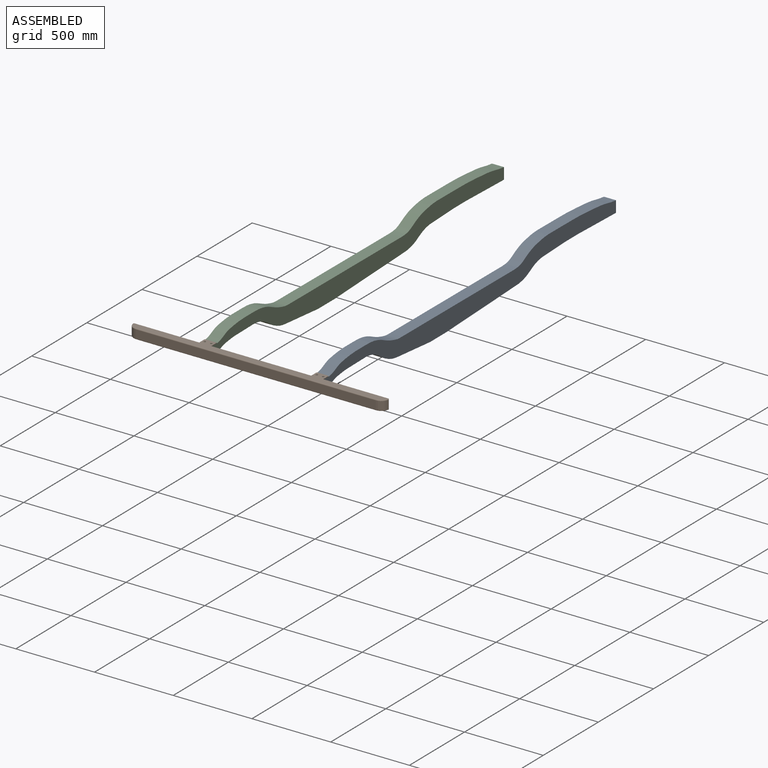
[diagram: assembled view]
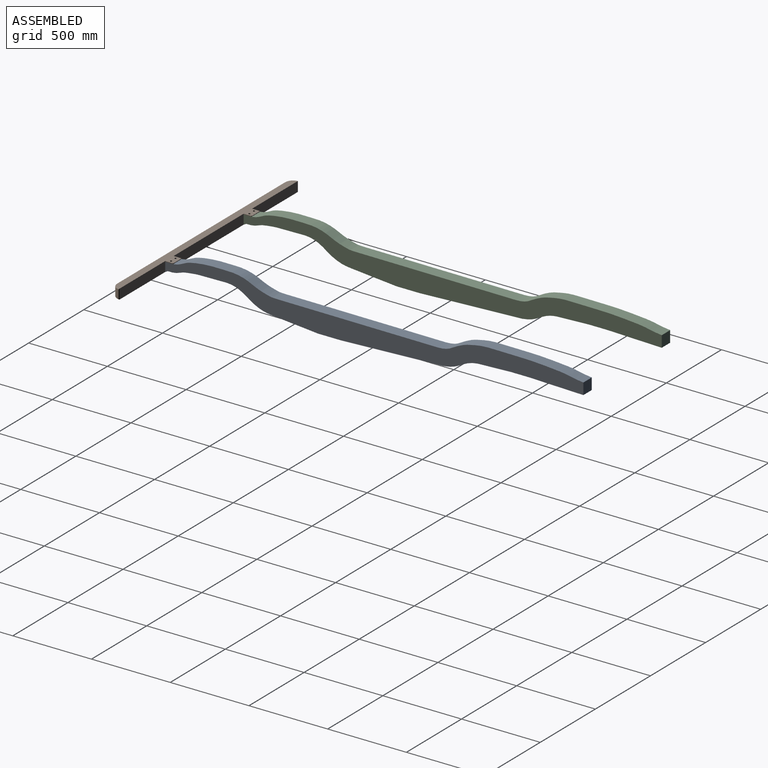
[diagram: assembled view, second angle]
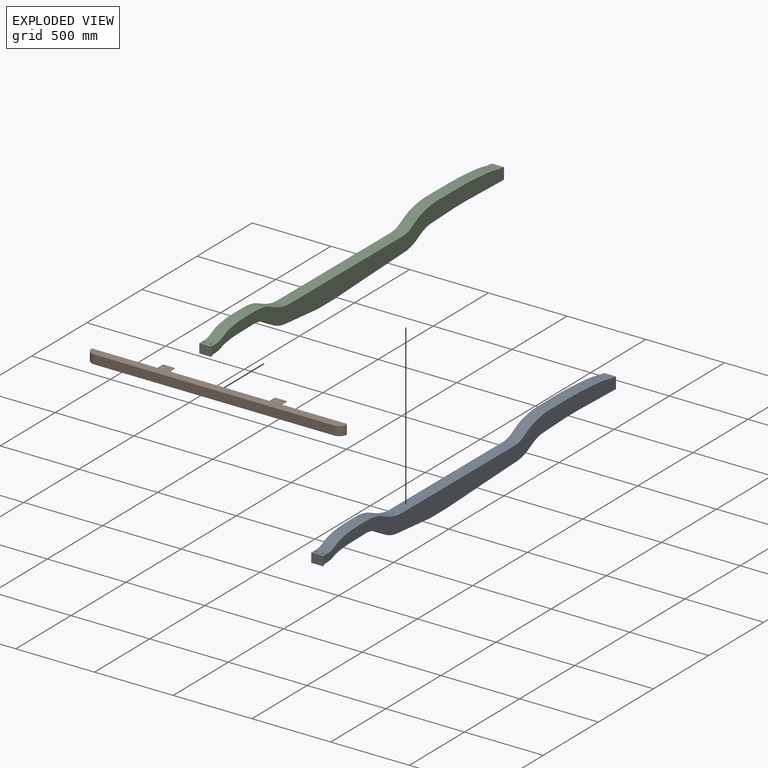
[diagram: exploded view]
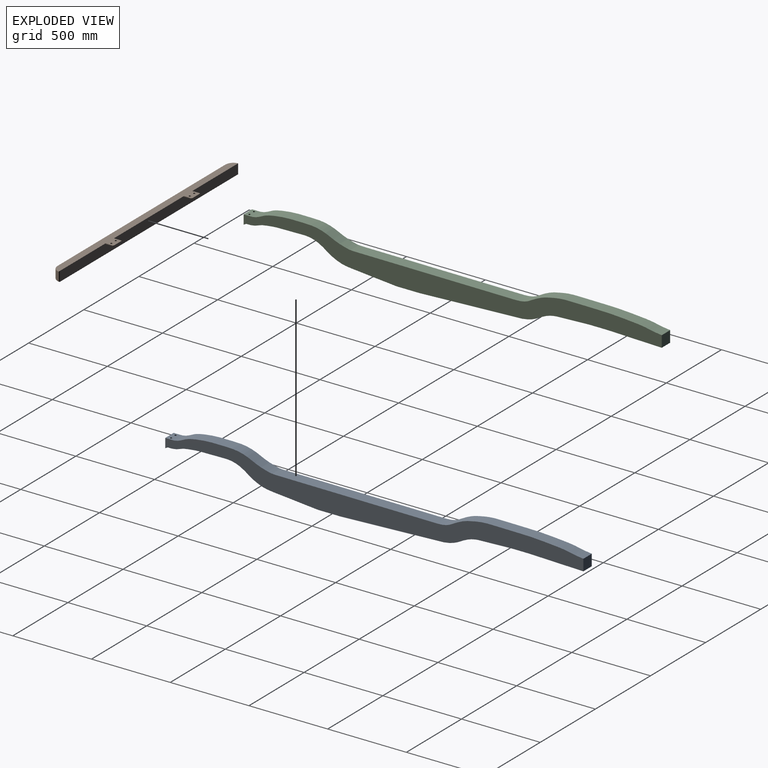
[diagram: exploded view, second angle]
ASSEMBLY  parts=3 mates=2
PART A: 23 faces, bbox 76.2x2655.7x209.6 mm
  f0: plane 76.2x55.21mm, normal (0,0,1), area 3953.3mm2, adj f11,f12,f19,f20,f21,f22
  f1: plane 76.2x28.1mm, normal (0,0,-1), area 1887.8mm2, adj f13,f14,f19,f20,f21,f22
  f2: plane 655.7x76.2mm, normal (0,0.04,-1), area 50008.2mm2, adj f3,f18,f19,f20
  f3: extruded ~216.09x76.2mm, area 17492.5mm2, adj f2,f4,f19,f20
  f4: plane 209.93x76.2mm, normal (0,0.04,-1), area 16010.2mm2, adj f3,f5,f19,f20
  f5: plane 118.01x76.2mm, normal (0,0,-1), area 8992.4mm2, adj f4,f6,f19,f20
  f6: plane 148.29x76.2mm, normal (0,-0.03,-1), area 11304.6mm2, adj f5,f7,f19,f20
  f7: plane 192.89x76.2mm, normal (0,-0.03,-1), area 14703.8mm2, adj f6,f8,f19,f20
  f8: plane 76.2x72.12mm, normal (0,1,0), area 5495.6mm2, adj f7,f9,f19,f20
  f9: extruded ~926.93x85.2mm, area 71757.6mm2, adj f8,f10,f19,f20
  f10: plane 1016.67x76.2mm, normal (0,0,1), area 77470.6mm2, adj f9,f11,f19,f20
  f11: extruded ~656.89x77.97mm, area 51598.8mm2, adj f0,f10,f19,f20
  f12: plane 76.2x59.09mm, normal (0,-1,0), area 4502.4mm2, adj f0,f13,f19,f20
  f13: plane 76.2x16.21mm, normal (0,0.48,-0.87), area 1412.3mm2, adj f1,f12,f19,f20
  f14: extruded ~170.29x76.2mm, area 13253.3mm2, adj f1,f15,f19,f20
  f15: plane 169.05x76.2mm, normal (0,0.01,-1), area 12882.9mm2, adj f14,f16,f19,f20
  f16: extruded ~298.31x110.28mm, area 24632.5mm2, adj f15,f17,f19,f20
  f17: plane 288.51x76.2mm, normal (0,-0.09,-1), area 22075.6mm2, adj f16,f18,f19,f20
  f18: plane 144.29x76.2mm, normal (0,0,-1), area 10994.9mm2, adj f2,f17,f19,f20
  f19: plane 2655.68x209.6mm, normal (-1,0,0), area 263248mm2, adj f0,f1,f2,f3,f4,f5,f6,f7
  f20: plane 2655.68x209.6mm, normal (1,0,0), area 263248mm2, adj f0,f1,f2,f3,f4,f5,f6,f7
  f21: cylinder r=6.35mm len=50.11mm, axis (0,0,1), area 1999.2mm2, adj f0,f1
  f22: cylinder r=6.35mm len=50.11mm, axis (0,0,1), area 1999.2mm2, adj f0,f1
PART B: 30 faces, bbox 1633.9x103.8x62.6 mm
  f0: plane 1614.43x62.62mm, normal (0,1,0), area 100549.4mm2, adj f1,f3,f4,f5,f7,f10,f11,f13
  f1: plane 1615.43x94.57mm, normal (0,0,1), area 77022.7mm2, adj f0,f5,f6,f7,f8,f9,f11,f12
  f2: plane 1524.08x52.46mm, normal (0,-1,0), area 79945.1mm2, adj f16,f17,f19,f24
  f3: plane 1615.43x43.77mm, normal (0,0,-1), area 69809.6mm2, adj f0,f20,f22,f23,f24,f25
  f4: plane 76.2x50.8mm, normal (0,0,-1), area 3606.5mm2, adj f0,f5,f6,f7,f8,f9,f28,f29
  f5: plane 45.72x3.53mm, normal (1,0,0), area 161.3mm2, adj f0,f1,f4,f29
  f6: cylinder r=6.35mm len=12.7mm, axis (0,0,1), area 140.8mm2, adj f1,f4
  f7: plane 45.72x3.53mm, normal (-1,0,0), area 161.3mm2, adj f0,f1,f4,f28
  f8: plane 66.04x3.53mm, normal (0,1,0), area 233mm2, adj f1,f4,f28,f29
  f9: cylinder r=6.35mm len=12.7mm, axis (0,0,1), area 140.8mm2, adj f1,f4
  f10: plane 76.2x50.8mm, normal (0,0,-1), area 3606.5mm2, adj f0,f11,f12,f13,f14,f15,f26,f27
  f11: plane 45.72x3.53mm, normal (1,0,0), area 161.3mm2, adj f0,f1,f10,f26
  f12: plane 66.04x3.53mm, normal (0,1,0), area 233mm2, adj f1,f10,f26,f27
  f13: plane 45.72x3.53mm, normal (-1,0,0), area 161.3mm2, adj f0,f1,f10,f27
  f14: cylinder r=6.35mm len=12.7mm, axis (0,0,1), area 140.8mm2, adj f1,f10
  f15: cylinder r=6.35mm len=12.7mm, axis (0,0,1), area 140.8mm2, adj f1,f10
  f16: cylinder r=50.8mm len=52.46mm, axis (0,0,1), area 3774.2mm2, adj f2,f18,f20,f22
  f17: cylinder r=50.8mm len=52.46mm, axis (0,0,1), area 3774.2mm2, adj f2,f21,f23,f25
  f18: torus R=45.72mm, axis (0,0,1), area 579.8mm2, adj f1,f16,f19,f20
  f19: cylinder r=5.08mm len=1524.08mm, axis (1,0,0), area 12161.6mm2, adj f1,f2,f18,f21
  f20: cylinder r=5.08mm len=62.62mm, axis (0,0,1), area 517.9mm2, adj f0,f1,f3,f16,f18,f22
  f21: torus R=45.72mm, axis (0,0,1), area 579.8mm2, adj f1,f17,f19,f23
  f22: torus R=45.72mm, axis (0,0,1), area 579.8mm2, adj f3,f16,f20,f24
  f23: cylinder r=5.08mm len=62.62mm, axis (0,0,1), area 517.9mm2, adj f0,f1,f3,f17,f21,f25
  f24: cylinder r=5.08mm len=1524.08mm, axis (-1,0,0), area 12161.6mm2, adj f2,f3,f22,f25
  f25: torus R=45.72mm, axis (0,0,1), area 579.8mm2, adj f3,f17,f23,f24
  f26: cylinder r=5.08mm len=5.08mm, axis (0,0,1), area 28.2mm2, adj f1,f10,f11,f12
  f27: cylinder r=5.08mm len=5.08mm, axis (0,0,-1), area 28.2mm2, adj f1,f10,f12,f13
  f28: cylinder r=5.08mm len=5.08mm, axis (0,0,1), area 28.2mm2, adj f1,f4,f7,f8
  f29: cylinder r=5.08mm len=5.08mm, axis (0,0,-1), area 28.2mm2, adj f1,f4,f5,f8
PART C: 23 faces, bbox 76.2x2655.7x209.6 mm
  f0: plane 76.2x55.21mm, normal (0,0,1), area 3953.3mm2, adj f11,f12,f19,f20,f21,f22
  f1: plane 76.2x28.1mm, normal (0,0,-1), area 1887.8mm2, adj f13,f14,f19,f20,f21,f22
  f2: plane 655.7x76.2mm, normal (0,0.04,-1), area 50008.2mm2, adj f3,f18,f19,f20
  f3: extruded ~216.09x76.2mm, area 17492.5mm2, adj f2,f4,f19,f20
  f4: plane 209.93x76.2mm, normal (0,0.04,-1), area 16010.2mm2, adj f3,f5,f19,f20
  f5: plane 118.01x76.2mm, normal (0,0,-1), area 8992.4mm2, adj f4,f6,f19,f20
  f6: plane 148.29x76.2mm, normal (0,-0.03,-1), area 11304.6mm2, adj f5,f7,f19,f20
  f7: plane 192.89x76.2mm, normal (0,-0.03,-1), area 14703.8mm2, adj f6,f8,f19,f20
  f8: plane 76.2x72.12mm, normal (0,1,0), area 5495.6mm2, adj f7,f9,f19,f20
  f9: extruded ~926.93x85.2mm, area 71757.6mm2, adj f8,f10,f19,f20
  f10: plane 1016.67x76.2mm, normal (0,0,1), area 77470.6mm2, adj f9,f11,f19,f20
  f11: extruded ~656.89x77.97mm, area 51598.8mm2, adj f0,f10,f19,f20
  f12: plane 76.2x59.09mm, normal (0,-1,0), area 4502.4mm2, adj f0,f13,f19,f20
  f13: plane 76.2x16.21mm, normal (0,0.48,-0.87), area 1412.3mm2, adj f1,f12,f19,f20
  f14: extruded ~170.29x76.2mm, area 13253.3mm2, adj f1,f15,f19,f20
  f15: plane 169.05x76.2mm, normal (0,0.01,-1), area 12882.9mm2, adj f14,f16,f19,f20
  f16: extruded ~298.31x110.28mm, area 24632.5mm2, adj f15,f17,f19,f20
  f17: plane 288.51x76.2mm, normal (0,-0.09,-1), area 22075.6mm2, adj f16,f18,f19,f20
  f18: plane 144.29x76.2mm, normal (0,0,-1), area 10994.9mm2, adj f2,f17,f19,f20
  f19: plane 2655.68x209.6mm, normal (-1,0,0), area 263248mm2, adj f0,f1,f2,f3,f4,f5,f6,f7
  f20: plane 2655.68x209.6mm, normal (1,0,0), area 263248mm2, adj f0,f1,f2,f3,f4,f5,f6,f7
  f21: cylinder r=6.35mm len=50.11mm, axis (0,0,1), area 1999.2mm2, adj f0,f1
  f22: cylinder r=6.35mm len=50.11mm, axis (0,0,1), area 1999.2mm2, adj f0,f1
PLACE A t=(402.38,1279.64,264.96)mm
PLACE B t=(402.38,1279.64,264.96)mm fixed
PLACE C t=(402.38,1279.64,264.96)mm
MATE fastened B.f9 <-> C.f22  axis (0,0,-1) through (-367.24,25.2,59.1)mm
MATE fastened A.f22 <-> B.f15  axis (0,0,1) through (384.6,25.2,59.1)mm
